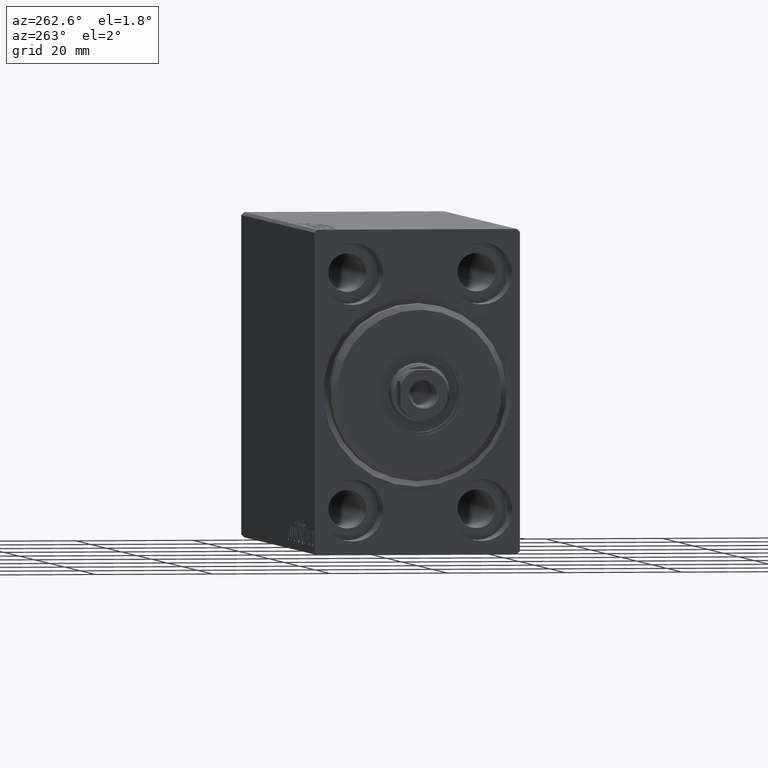
[diagram: clean part render]
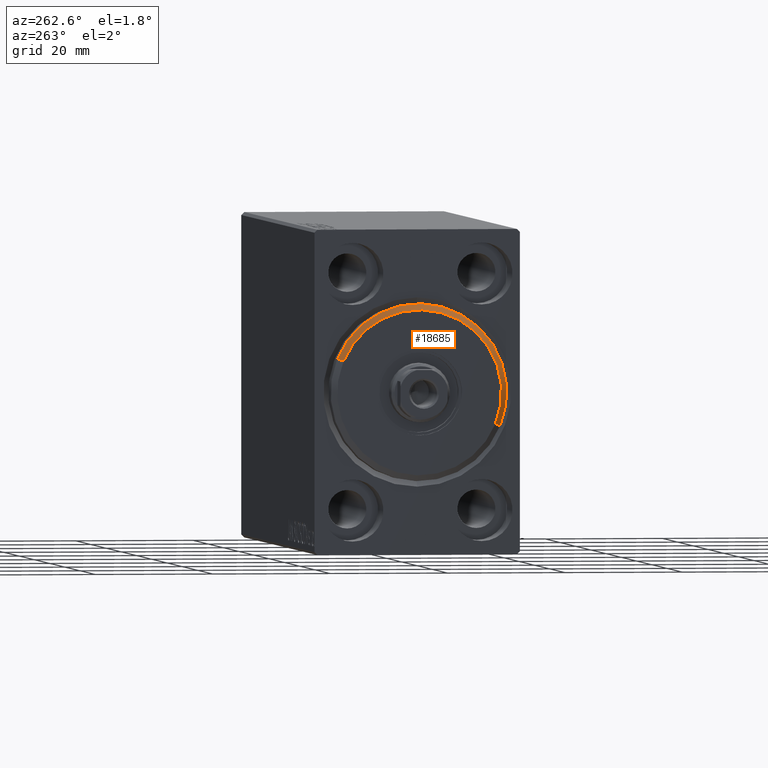
[diagram: same view with one face highlighted and labeled with its STEP entity id]
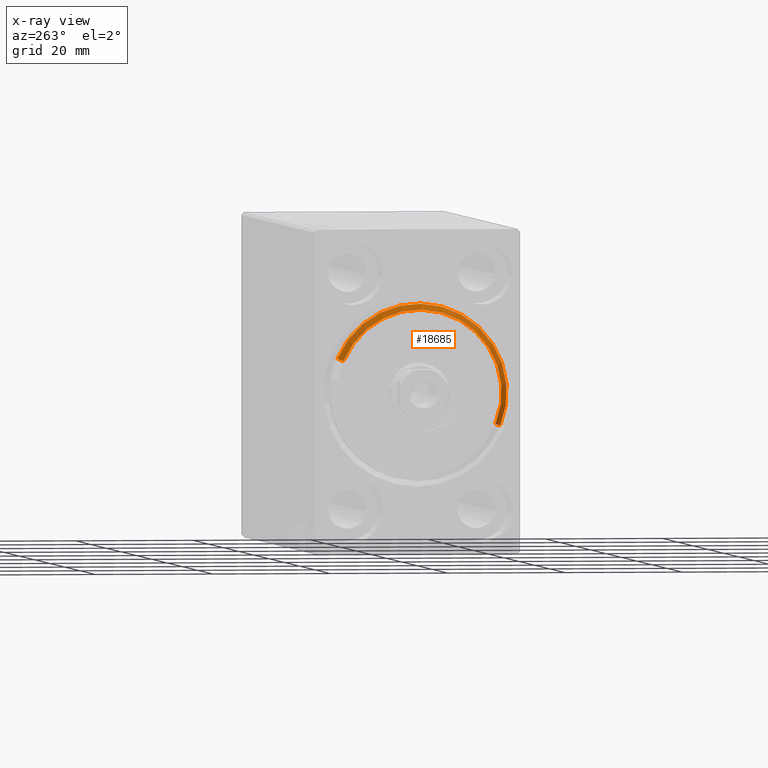
[diagram: x-ray of the same camera — body ghosted, the highlighted face saturated]
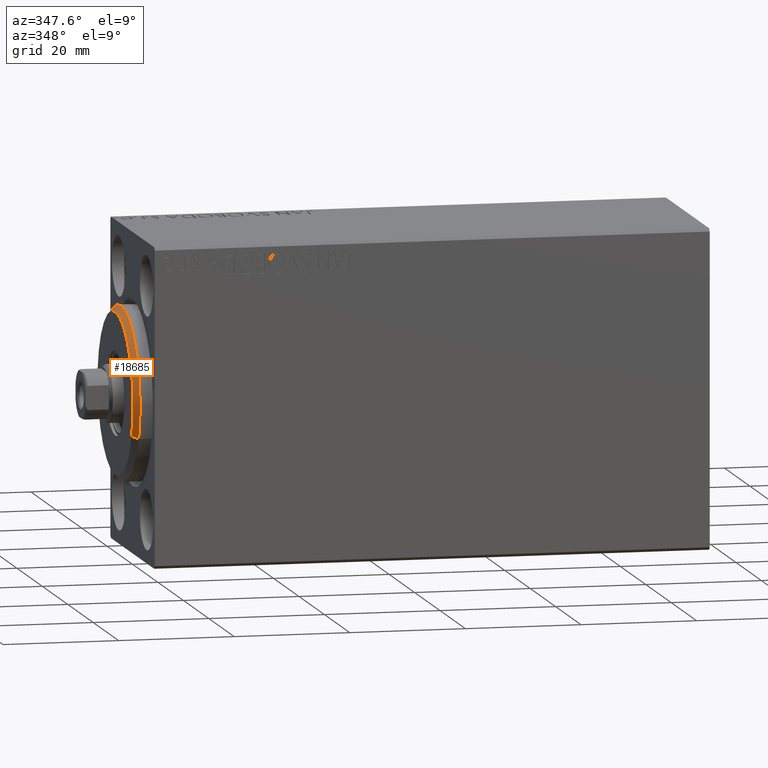
[diagram: same view with one face highlighted and labeled with its STEP entity id]
A machine part, auxiliary view. The second image highlights one B-rep face of the part: STEP entity #18685.
The next image is the same camera in x-ray: the body ghosted, the highlighted face saturated — about 0% of this face is hidden behind the body in this view.
A second angle (auxiliary view) of the same face is appended — the face is thin or edge-on in the first view.
In plain terms, the highlighted conical surface has half-angle 45 deg.
Its self-contained STEP definition (entity closure, byte-faithful):
#1329 = ORIENTED_EDGE ( 'NONE', *, *, #17825, .F. ) ;
#1842 = DIRECTION ( 'NONE',  ( -0.7071067811865482389, 0.000000000000000000, 0.7071067811865469066 ) ) ;
#1993 = VERTEX_POINT ( 'NONE', #28631 ) ;
#2917 = CIRCLE ( 'NONE', #39077, 13.99999999999999645 ) ;
#3150 = ORIENTED_EDGE ( 'NONE', *, *, #21766, .T. ) ;
#3460 = DIRECTION ( 'NONE',  ( 0.000000000000000000, 0.000000000000000000, -1.000000000000000000 ) ) ;
#4608 = CARTESIAN_POINT ( 'NONE',  ( 1.999999999999995781, 1.836970198721029589E-15, -15.00000000000000000 ) ) ;
#6700 = DIRECTION ( 'NONE',  ( -0.7071067811865482389, 8.659560562354926695E-17, -0.7071067811865469066 ) ) ;
#9276 = DIRECTION ( 'NONE',  ( 1.000000000000000000, -0.000000000000000000, 0.000000000000000000 ) ) ;
#9487 = CARTESIAN_POINT ( 'NONE',  ( 1.999999999999995781, 0.000000000000000000, 15.00000000000000000 ) ) ;
#12026 = LINE ( 'NONE', #15146, #21302 ) ;
#12149 = ORIENTED_EDGE ( 'NONE', *, *, #43755, .F. ) ;
#12522 = DIRECTION ( 'NONE',  ( 0.000000000000000000, 0.000000000000000000, 1.000000000000000000 ) ) ;
#12750 = FACE_OUTER_BOUND ( 'NONE', #14070, .T. ) ;
#14070 = EDGE_LOOP ( 'NONE', ( #1329, #12149, #3150, #19587 ) ) ;
#15146 = CARTESIAN_POINT ( 'NONE',  ( 3.000000000000000000, 0.000000000000000000, 13.99999999999999645 ) ) ;
#15525 = VECTOR ( 'NONE', #6700, 999.9999999999998863 ) ;
#16143 = DIRECTION ( 'NONE',  ( 0.000000000000000000, 0.000000000000000000, -1.000000000000000000 ) ) ;
#16367 = EDGE_CURVE ( 'NONE', #27326, #22435, #17716, .T. ) ;
#17641 = CARTESIAN_POINT ( 'NONE',  ( 1.999999999999995781, 0.000000000000000000, 0.000000000000000000 ) ) ;
#17716 = CIRCLE ( 'NONE', #40418, 15.00000000000000000 ) ;
#17825 = EDGE_CURVE ( 'NONE', #1993, #27326, #24200, .T. ) ;
#18325 = CARTESIAN_POINT ( 'NONE',  ( 3.000000000000000000, 0.000000000000000000, 13.99999999999999645 ) ) ;
#18685 = ADVANCED_FACE ( 'NONE', ( #12750 ), #31148, .T. ) ;
#18763 = DIRECTION ( 'NONE',  ( -1.000000000000000000, 0.000000000000000000, 0.000000000000000000 ) ) ;
#19587 = ORIENTED_EDGE ( 'NONE', *, *, #16367, .F. ) ;
#21302 = VECTOR ( 'NONE', #1842, 999.9999999999998863 ) ;
#21766 = EDGE_CURVE ( 'NONE', #40016, #22435, #12026, .T. ) ;
#22435 = VERTEX_POINT ( 'NONE', #9487 ) ;
#24200 = LINE ( 'NONE', #37759, #15525 ) ;
#27326 = VERTEX_POINT ( 'NONE', #4608 ) ;
#28631 = CARTESIAN_POINT ( 'NONE',  ( 3.000000000000000000, 1.775737858763662015E-15, -13.99999999999999645 ) ) ;
#31148 = CONICAL_SURFACE ( 'NONE', #31884, 13.99999999999999645, 0.7853981633974473908 ) ;
#31884 = AXIS2_PLACEMENT_3D ( 'NONE', #39852, #18763, #12522 ) ;
#35910 = CARTESIAN_POINT ( 'NONE',  ( 3.000000000000000000, 0.000000000000000000, 0.000000000000000000 ) ) ;
#37642 = DIRECTION ( 'NONE',  ( -1.000000000000000000, 0.000000000000000000, 0.000000000000000000 ) ) ;
#37759 = CARTESIAN_POINT ( 'NONE',  ( 3.000000000000000000, 1.714505518806294244E-15, -13.99999999999999645 ) ) ;
#39077 = AXIS2_PLACEMENT_3D ( 'NONE', #35910, #9276, #16143 ) ;
#39852 = CARTESIAN_POINT ( 'NONE',  ( 3.000000000000000000, 0.000000000000000000, 0.000000000000000000 ) ) ;
#40016 = VERTEX_POINT ( 'NONE', #18325 ) ;
#40418 = AXIS2_PLACEMENT_3D ( 'NONE', #17641, #37642, #3460 ) ;
#43755 = EDGE_CURVE ( 'NONE', #40016, #1993, #2917, .T. ) ;